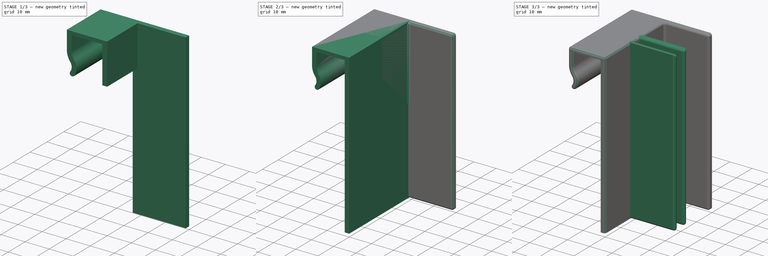
[diagram: build sequence overview — one tinted view per stage of 3, left to right]
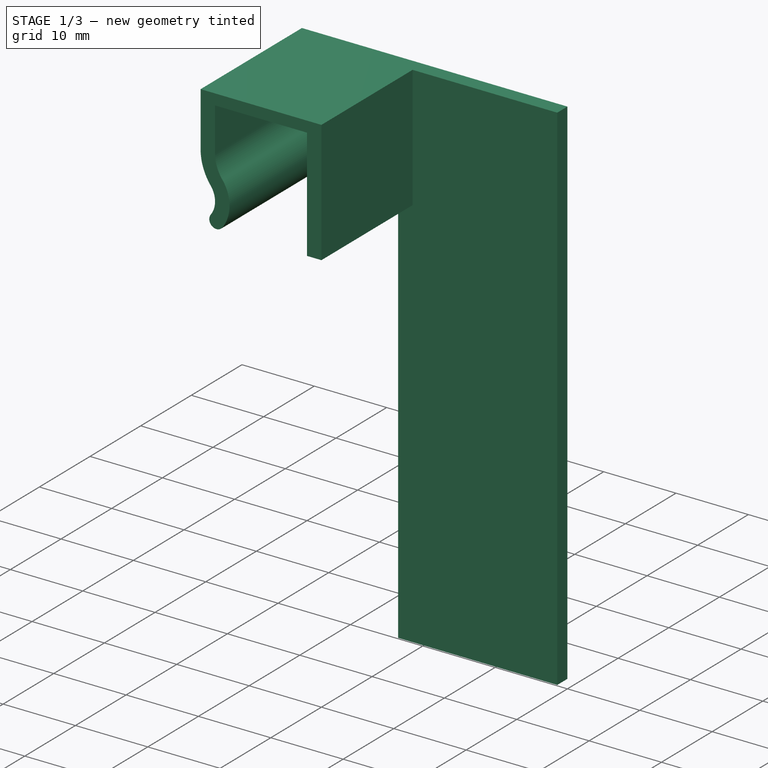
[diagram: stage 1 of 3 — iso view after this stage's code; geometry added in this stage tinted green]
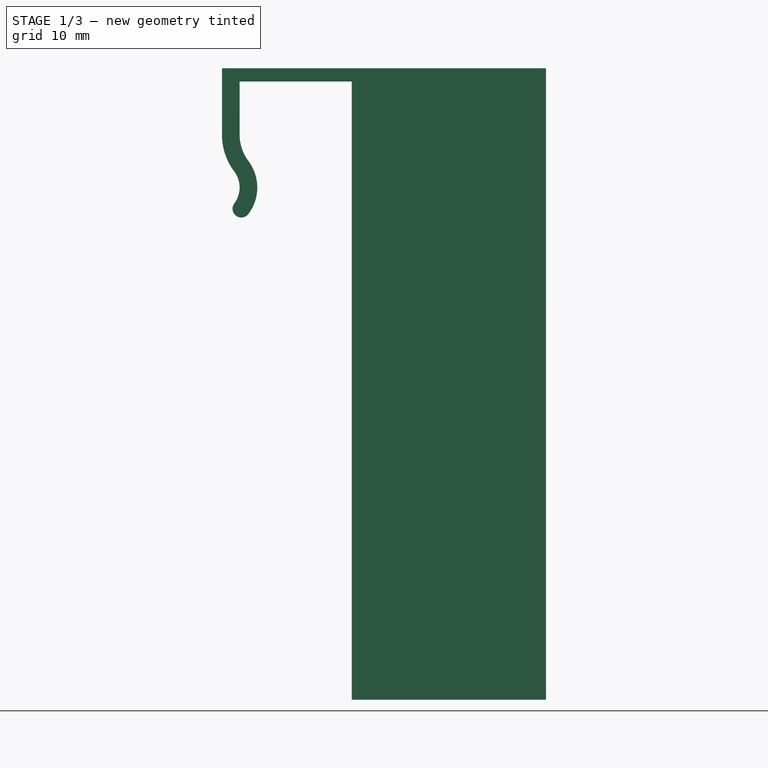
[diagram: stage 1 of 3 — front view after this stage's code; geometry added in this stage tinted green]
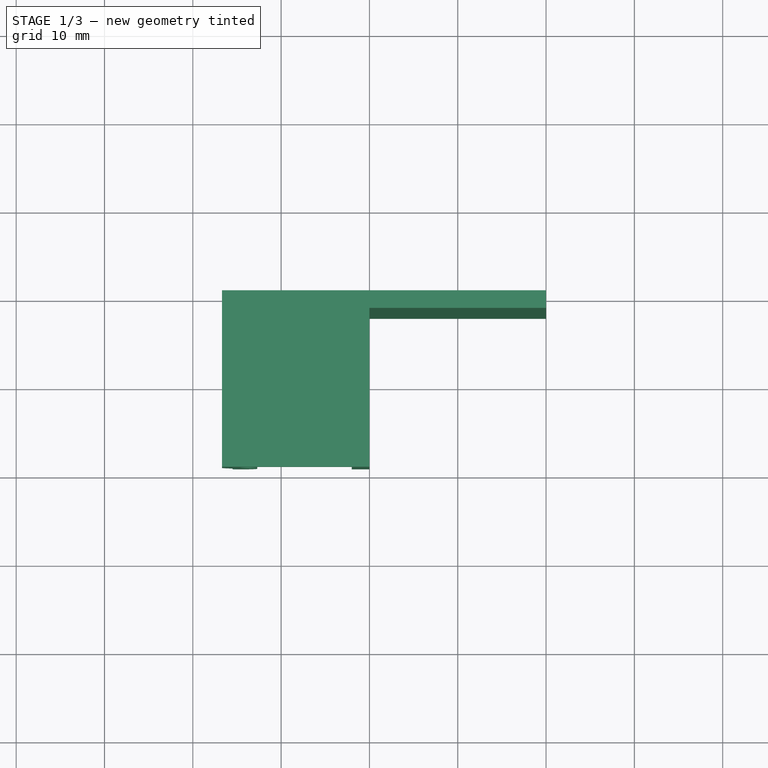
[diagram: stage 1 of 3 — top view after this stage's code; geometry added in this stage tinted green]
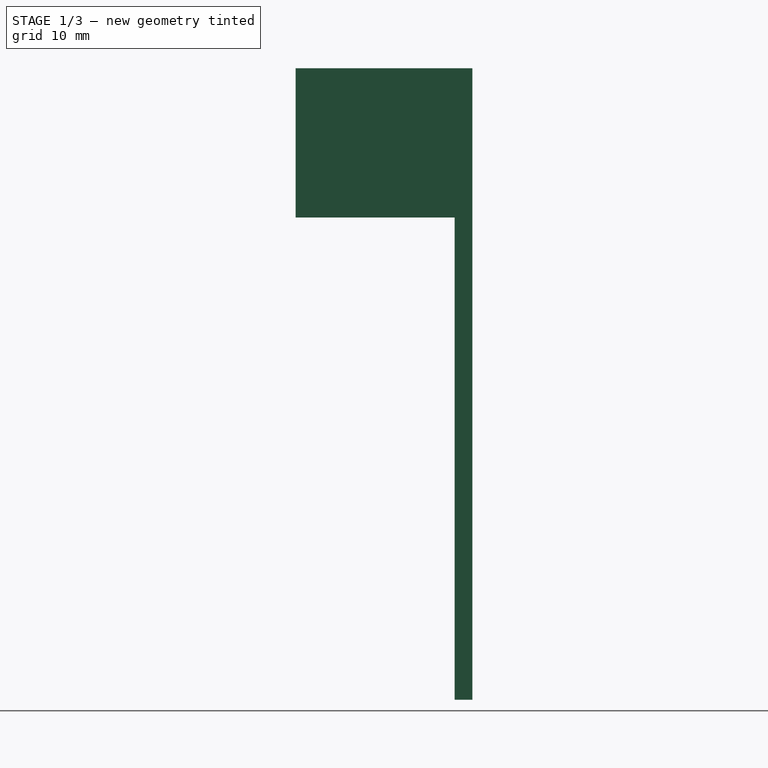
[diagram: stage 1 of 3 — right view after this stage's code; geometry added in this stage tinted green]
FCSTD DOCUMENT  (FreeCAD 0.18.4R)
Label: DrawerSplitter2
License: All rights reserved
LicenseURL: http://en.wikipedia.org/wiki/All_rights_reserved
objects: Sketcher::SketchObject×5, PartDesign::Pad×5, PartDesign::Fillet×2, PartDesign::Body×2
note: 19 computed .brp shape members not serialized (recipe doc carries the construction recipe); baked Part::Feature solids carry a one-line shape summary decoded from their .brp

FEATURE [PartDesign::Body] Body
  Group = -> [Sketch,Pad,Sketch001,Pad001,Fillet]
  Origin = -> Origin
  Tip = -> Fillet
FEATURE [Sketcher::SketchObject] Sketch002
  MapMode = 5
  Placement = pos=(0,0,0) rot=(1,0,0;1.5708rad)
  Support = -> [XZ_Plane001]
  sketch-geometry (20):
    g0: LineSegment StartX=-16.7 StartY=0 StartZ=0 EndX=0 EndY=0 EndZ=0
    g1: LineSegment StartX=0 StartY=0 StartZ=0 EndX=0 EndY=-16.9 EndZ=0
    g2: LineSegment StartX=0 StartY=-16.9 StartZ=0 EndX=-2 EndY=-16.9 EndZ=0
    g3: LineSegment StartX=-2 StartY=-16.9 StartZ=0 EndX=-2 EndY=-1.5 EndZ=0
    g4: LineSegment StartX=-14.7 StartY=-1.5 StartZ=0 EndX=-2 EndY=-1.5 EndZ=0
    g5: LineSegment StartX=-16.7 StartY=0 StartZ=0 EndX=-16.7 EndY=-7.5 EndZ=0
    g6: LineSegment StartX=-14.7 StartY=-7.5 StartZ=0 EndX=-14.7 EndY=-1.5 EndZ=0
    g7: LineSegment [constr] StartX=-14.7 StartY=-1.5 StartZ=0 EndX=-16.7 EndY=-1.5 EndZ=0
    g8: ArcOfCircle CenterX=-9.7 CenterY=-7.5 CenterZ=0 NormalX=0 NormalY=0 NormalZ=1 AngleXU=0 Radius=5 StartAngle=3.14159 EndAngle=3.78509
    g9: ArcOfCircle CenterX=-17.7 CenterY=-13.5 CenterZ=0 NormalX=0 NormalY=0 NormalZ=1 AngleXU=0 Radius=5 StartAngle=5.63968 EndAngle=6.92669
    g10: ArcOfCircle CenterX=-9.7 CenterY=-7.5 CenterZ=0 NormalX=0 NormalY=0 NormalZ=1 AngleXU=0 Radius=7 StartAngle=3.14159 EndAngle=3.78509
    g11: ArcOfCircle CenterX=-17.7 CenterY=-13.5 CenterZ=0 NormalX=0 NormalY=0 NormalZ=1 AngleXU=0 Radius=3 StartAngle=5.63968 EndAngle=6.92669
    g12: LineSegment [constr] StartX=-15.3 StartY=-15.3 StartZ=0 EndX=-13.7 EndY=-16.5 EndZ=0
    g13: ArcOfCircle CenterX=-14.5 CenterY=-15.9 CenterZ=0 NormalX=0 NormalY=0 NormalZ=1 AngleXU=0 Radius=1 StartAngle=2.49809 EndAngle=5.63968
    g14: LineSegment [constr] StartX=-12.7 StartY=-1.5 StartZ=0 EndX=-12.7 EndY=-13.5 EndZ=0
    g15: LineSegment [constr] StartX=-17.7 StartY=-13.5 StartZ=0 EndX=-12.7 EndY=-13.5 EndZ=0
    g16: LineSegment [constr] StartX=-2 StartY=-16.9 StartZ=0 EndX=-14.5 EndY=-16.9 EndZ=0
    g17: LineSegment [constr] StartX=-2 StartY=-16.9 StartZ=0 EndX=-2 EndY=-71.5 EndZ=0
    g18: LineSegment [constr] StartX=-2 StartY=-71.5 StartZ=0 EndX=0 EndY=-71.5 EndZ=0
    g19: LineSegment [constr] StartX=0 StartY=-71.5 StartZ=0 EndX=0 EndY=-16.9 EndZ=0
  constraints (55):
    c: Coincident(g0,g1)
    c: Coincident(g1,g2)
    c: Coincident(g2,g3)
    c: Horizontal(g0)
    c: Horizontal(g2)
    c: Vertical(g1)
    c: Vertical(g3)
    c: Coincident(g6,g4)
    c: Horizontal(g4)
    c: Vertical(g5)
    c: Vertical(g6)
    c: Coincident(g4,g3)
    c: Coincident(g5,g0)
    c: DistanceX(g2,g2) = 2  'Thickness'
    c: DistanceX(g4,g4) = 12.7
    c: Coincident(g7,g4)
    c: PointOnObject(g7,g5)
    c: Horizontal(g7)
    c: Equal(g7,g2)
    c: DistanceY(g3,g0) = 1.5
    c: Tangent(g6,g8) = 1.5708
    c: Tangent(g8,g9) = 1.5708
    c: DistanceY(g6,g6) = 6
    c: Coincident(g10,g8)
    c: Coincident(g12,g11)
    c: Coincident(g9,g12)
    c: PointOnObject(g9,g12)
    c: PointOnObject(g13,g12)
    c: Coincident(g13,g11)
    c: Coincident(g13,g9)
    c: PointOnObject(g14,g4)
    c: Vertical(g14)
    c: Tangent(g14,g9) = 1.5708
    c: Tangent(g10,g11) = 1.5708
    c: Coincident(g9,g11)
    c: DistanceX(g4,g14) = 2
    c: Coincident(g15,g9)
    c: Coincident(g15,g14)
    c: Symmetric(g10,g11,g15)
    c: Tangent(g5,g10) = -1.5708
    c: DistanceY(g14,g6) = 6
    c: Radius(g9) = 5
    c: Coincident(g16,g2)
    c: Horizontal(g16)
    c: Tangent(g16,g13) = 1.5708
    c: Coincident(g2,g17)
    c: Vertical(g17)
    c: Coincident(g17,g18)
    c: Horizontal(g18)
    c: Coincident(g18,g19)
    c: Coincident(g19,g1)
    c: Vertical(g19)
    c: DistanceY(g17,g3) = 70
    c: DistanceY(g18,g0) = 71.5  'Height'
    c: Coincident(g0,g-1)  '__ANCHOR__'
FEATURE [PartDesign::Pad] Pad002
  Length = 20
  Length2 = 100
  Placement = pos=(0,0,0) rot=(1,0,0;1.5708rad)
  Profile = -> Sketch002
  Type = 0
FEATURE [Sketcher::SketchObject] Sketch003
  ExternalGeometry = -> [Sketch002]
  MapMode = 5
  Support = -> [XY_Plane001]
  expr: Constraints.Thickness = Sketch002.Constraints.Thickness
  sketch-geometry (4):
    g0: LineSegment StartX=-2 StartY=-2 StartZ=0 EndX=20 EndY=-2 EndZ=0
    g1: LineSegment StartX=20 StartY=-2 StartZ=0 EndX=20 EndY=-2e-15 EndZ=0
    g2: LineSegment StartX=20 StartY=-2e-15 StartZ=0 EndX=-2 EndY=-2e-15 EndZ=0
    g3: LineSegment StartX=-2 StartY=-2e-15 StartZ=0 EndX=-2 EndY=-2 EndZ=0
  constraints (11):
    c: Coincident(g0,g1)
    c: Coincident(g1,g2)
    c: Coincident(g2,g3)
    c: Coincident(g3,g0)
    c: Horizontal(g0)
    c: Horizontal(g2)
    c: Vertical(g1)
    c: Vertical(g3)
    c: DistanceY(g1,g1) = 2  'Thickness'
    c: Coincident(g2,g-3)
    c: DistanceX(g-4,g1) = 20
FEATURE [PartDesign::Pad] Pad003
  BaseFeature = -> Pad002
  Length = 71.5
  Length2 = 100
  Placement = pos=(0,0,0) rot=(1,0,0;1.5708rad)
  Profile = -> Sketch003
  Reversed = true
  Type = 0
  expr: Length = Sketch002.Constraints.Height
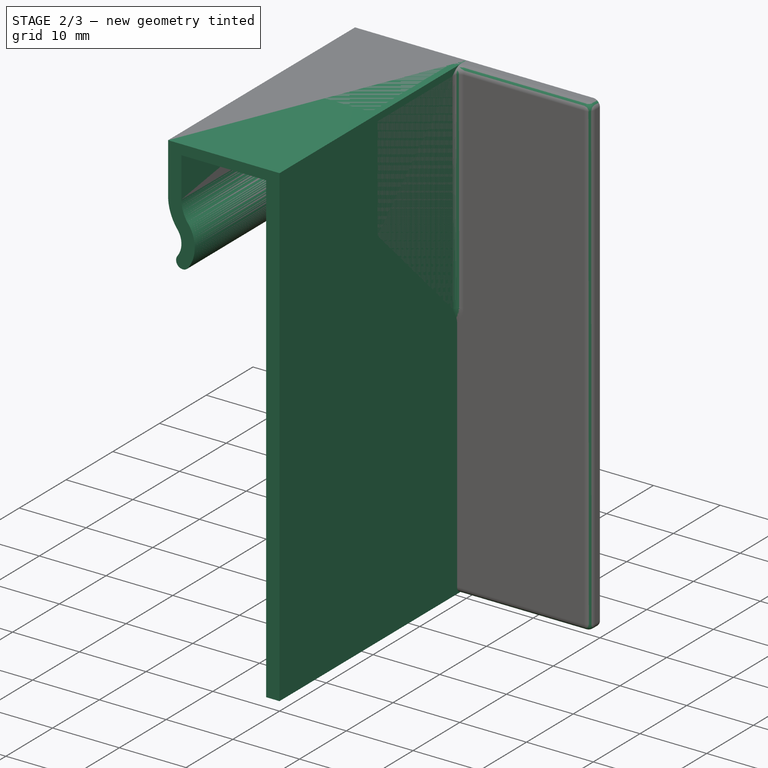
[diagram: stage 2 of 3 — iso view after this stage's code; geometry added in this stage tinted green]
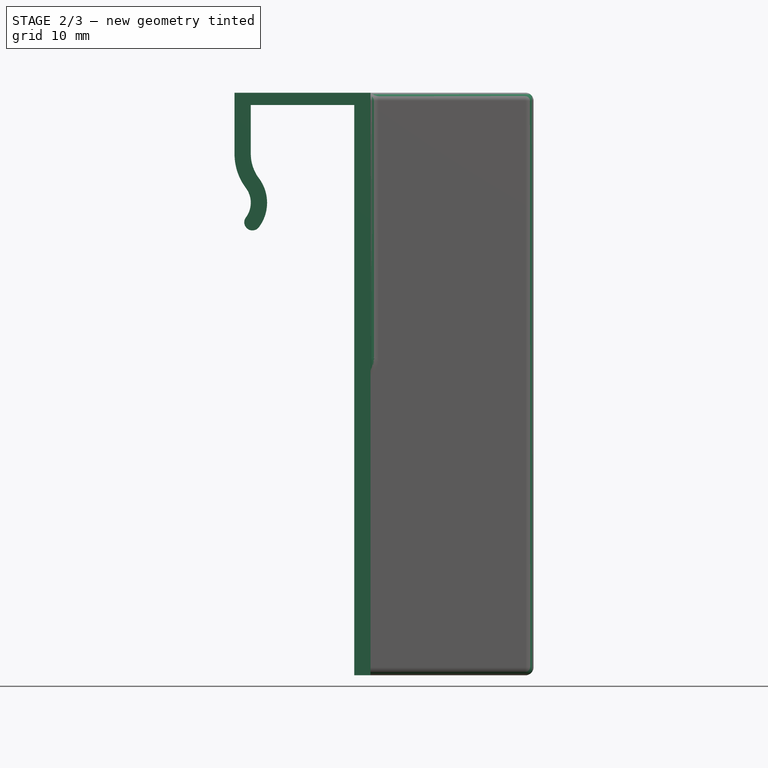
[diagram: stage 2 of 3 — front view after this stage's code; geometry added in this stage tinted green]
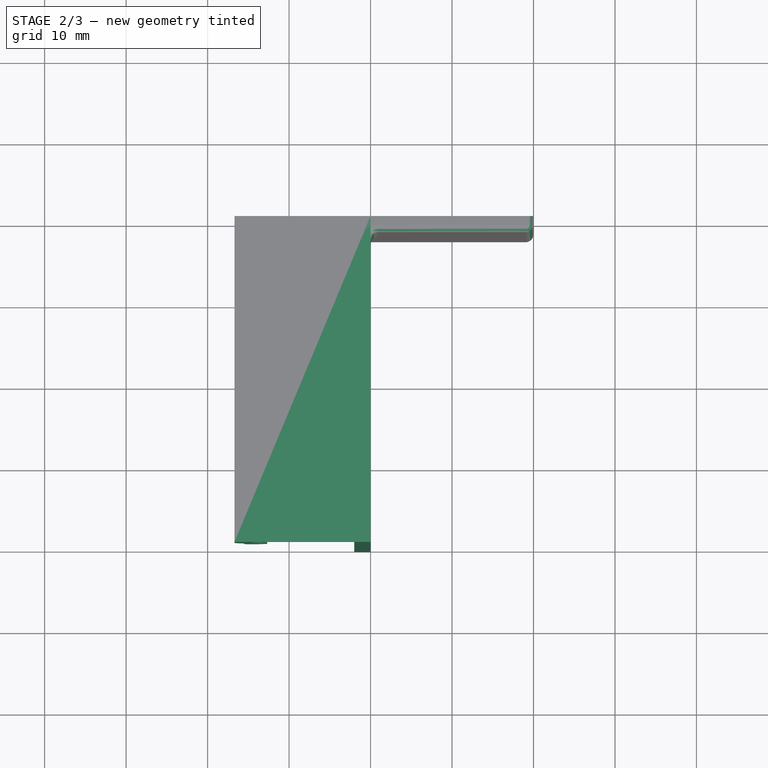
[diagram: stage 2 of 3 — top view after this stage's code; geometry added in this stage tinted green]
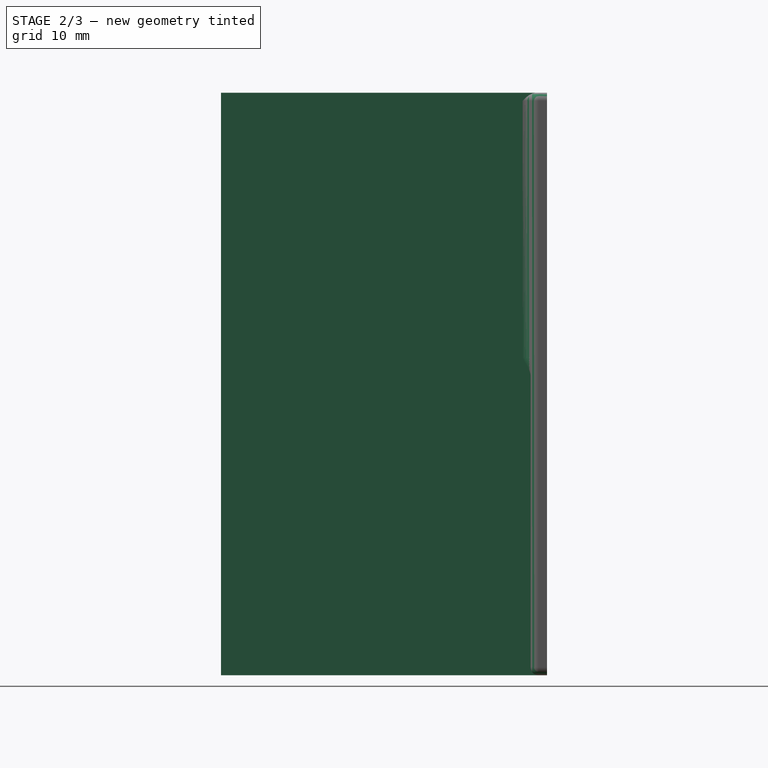
[diagram: stage 2 of 3 — right view after this stage's code; geometry added in this stage tinted green]
FEATURE [Sketcher::SketchObject] Sketch
  MapMode = 5
  Placement = pos=(0,0,0) rot=(1,0,0;1.5708rad)
  Support = -> [XZ_Plane]
  sketch-geometry (16):
    g0: LineSegment StartX=-16.7 StartY=0 StartZ=0 EndX=0 EndY=0 EndZ=0
    g1: LineSegment StartX=0 StartY=0 StartZ=0 EndX=0 EndY=-71.5 EndZ=0
    g2: LineSegment StartX=0 StartY=-71.5 StartZ=0 EndX=-2 EndY=-71.5 EndZ=0
    g3: LineSegment StartX=-2 StartY=-71.5 StartZ=0 EndX=-2 EndY=-1.5 EndZ=0
    g4: LineSegment StartX=-14.7 StartY=-1.5 StartZ=0 EndX=-2 EndY=-1.5 EndZ=0
    g5: LineSegment StartX=-16.7 StartY=0 StartZ=0 EndX=-16.7 EndY=-7.5 EndZ=0
    g6: LineSegment StartX=-14.7 StartY=-7.5 StartZ=0 EndX=-14.7 EndY=-1.5 EndZ=0
    g7: LineSegment [constr] StartX=-14.7 StartY=-1.5 StartZ=0 EndX=-16.7 EndY=-1.5 EndZ=0
    g8: ArcOfCircle CenterX=-9.7 CenterY=-7.5 CenterZ=0 NormalX=0 NormalY=0 NormalZ=1 AngleXU=0 Radius=5 StartAngle=3.14159 EndAngle=3.78509
    g9: ArcOfCircle CenterX=-17.7 CenterY=-13.5 CenterZ=0 NormalX=0 NormalY=0 NormalZ=1 AngleXU=0 Radius=5 StartAngle=5.63968 EndAngle=6.92669
    g10: ArcOfCircle CenterX=-9.7 CenterY=-7.5 CenterZ=0 NormalX=0 NormalY=0 NormalZ=1 AngleXU=0 Radius=7 StartAngle=3.14159 EndAngle=3.78509
    g11: ArcOfCircle CenterX=-17.7 CenterY=-13.5 CenterZ=0 NormalX=0 NormalY=0 NormalZ=1 AngleXU=0 Radius=3 StartAngle=5.63968 EndAngle=6.92669
    g12: LineSegment [constr] StartX=-15.3 StartY=-15.3 StartZ=0 EndX=-13.7 EndY=-16.5 EndZ=0
    g13: ArcOfCircle CenterX=-14.5 CenterY=-15.9 CenterZ=0 NormalX=0 NormalY=0 NormalZ=1 AngleXU=0 Radius=1 StartAngle=2.49809 EndAngle=5.63968
    g14: LineSegment [constr] StartX=-12.7 StartY=-1.5 StartZ=0 EndX=-12.7 EndY=-13.5 EndZ=0
    g15: LineSegment [constr] StartX=-17.7 StartY=-13.5 StartZ=0 EndX=-12.7 EndY=-13.5 EndZ=0
  constraints (45):
    c: Coincident(g0,g1)
    c: Coincident(g1,g2)
    c: Coincident(g2,g3)
    c: Horizontal(g0)
    c: Horizontal(g2)
    c: Vertical(g1)
    c: Vertical(g3)
    c: Coincident(g6,g4)
    c: Horizontal(g4)
    c: Vertical(g5)
    c: Vertical(g6)
    c: Coincident(g4,g3)
    c: Coincident(g5,g0)
    c: DistanceX(g2,g2) = 2
    c: DistanceX(g4,g4) = 12.7
    c: Coincident(g7,g4)
    c: PointOnObject(g7,g5)
    c: Horizontal(g7)
    c: Equal(g7,g2)
    c: DistanceY(g3,g0) = 1.5
    c: Tangent(g6,g8) = 1.5708
    c: Tangent(g8,g9) = 1.5708
    c: DistanceY(g6,g6) = 6
    c: Coincident(g10,g8)
    c: Coincident(g12,g11)
    c: Coincident(g9,g12)
    c: PointOnObject(g9,g12)
    c: PointOnObject(g13,g12)
    c: Coincident(g13,g11)
    c: Coincident(g13,g9)
    c: PointOnObject(g14,g4)
    c: Vertical(g14)
    c: Tangent(g14,g9) = 1.5708
    c: Tangent(g10,g11) = 1.5708
    c: Coincident(g9,g11)
    c: DistanceX(g4,g14) = 2
    c: DistanceY(g3,g3) = 70
    c: Coincident(g15,g9)
    c: Coincident(g15,g14)
    c: Symmetric(g10,g11,g15)
    c: Tangent(g5,g10) = -1.5708
    c: DistanceY(g14,g6) = 6
    c: Radius(g9) = 5
    c: Coincident(g0,g-1)  '__ANCHOR__'
    c: DistanceY(g1,g0) = 71.5  'Height'
FEATURE [PartDesign::Pad] Pad
  Length = 40
  Length2 = 100
  Placement = pos=(0,0,0) rot=(1,0,0;1.5708rad)
  Profile = -> Sketch
  Type = 0
FEATURE [Sketcher::SketchObject] Sketch004
  ExternalGeometry = -> [Sketch003,Sketch002]
  MapMode = 5
  Placement = pos=(0,0,0) rot=(0.57735,0.57735,0.57735;2.0944rad)
  Support = -> [YZ_Plane001]
  expr: Constraints[2] = Pad002.Length
  sketch-geometry (7):
    g0: LineSegment [constr] StartX=-2 StartY=0 StartZ=0 EndX=-20 EndY=0 EndZ=0
    g1: LineSegment [constr] StartX=-20 StartY=0 StartZ=0 EndX=-20 EndY=-16.9 EndZ=0
    g2: LineSegment StartX=-20 StartY=-16.9 StartZ=0 EndX=-2 EndY=-16.9 EndZ=0
    g3: LineSegment [constr] StartX=-2 StartY=-16.9 StartZ=0 EndX=0 EndY=-16.9 EndZ=0
    g4: LineSegment [constr] StartX=-2 StartY=0 StartZ=0 EndX=-2 EndY=-16.9 EndZ=0
    g5: LineSegment StartX=-2 StartY=-16.9 StartZ=0 EndX=-2 EndY=-34.9 EndZ=0
    g6: LineSegment StartX=-2 StartY=-34.9 StartZ=0 EndX=-20 EndY=-16.9 EndZ=0
  constraints (18):
    c: Horizontal(g0)
    c: Coincident(g0,g-3)
    c: DistanceX(g0,g-4) = 20
    c: Coincident(g1,g0)
    c: Vertical(g1)
    c: Coincident(g2,g1)
    c: Horizontal(g2)
    c: Coincident(g3,g2)
    c: Coincident(g3,g-4)
    c: Horizontal(g3)
    c: Coincident(g4,g0)
    c: Coincident(g4,g2)
    c: Vertical(g4)
    c: Coincident(g2,g5)
    c: Vertical(g5)
    c: Coincident(g5,g6)
    c: Coincident(g6,g2)
    c: Equal(g2,g5)
FEATURE [PartDesign::Pad] Pad004
  BaseFeature = -> Pad003
  Length = 2
  Length2 = 100
  Placement = pos=(0,0,0) rot=(1,0,0;1.5708rad)
  Profile = -> Sketch004
  Refine = true
  Reversed = true
  Type = 0
  expr: Length = Sketch002.Constraints.Thickness
FEATURE [PartDesign::Fillet] Fillet001
  Base = -> Pad004 [Edge43,Edge6,Edge1,Edge39,Edge2,Edge3,Edge4,Edge5,Edge9,Edge7,Edge12,Edge14,Edge21,Edge10,Edge42,Edge40,Edge11,Edge8]
  BaseFeature = -> Pad004
  Placement = pos=(0,0,0) rot=(1,0,0;1.5708rad)
  Radius = 0.99
FEATURE [PartDesign::Body] Body001
  Group = -> [Sketch002,Pad002,Sketch003,Pad003,Sketch004,Pad004,Fillet001]
  Origin = -> Origin001
  Tip = -> Fillet001
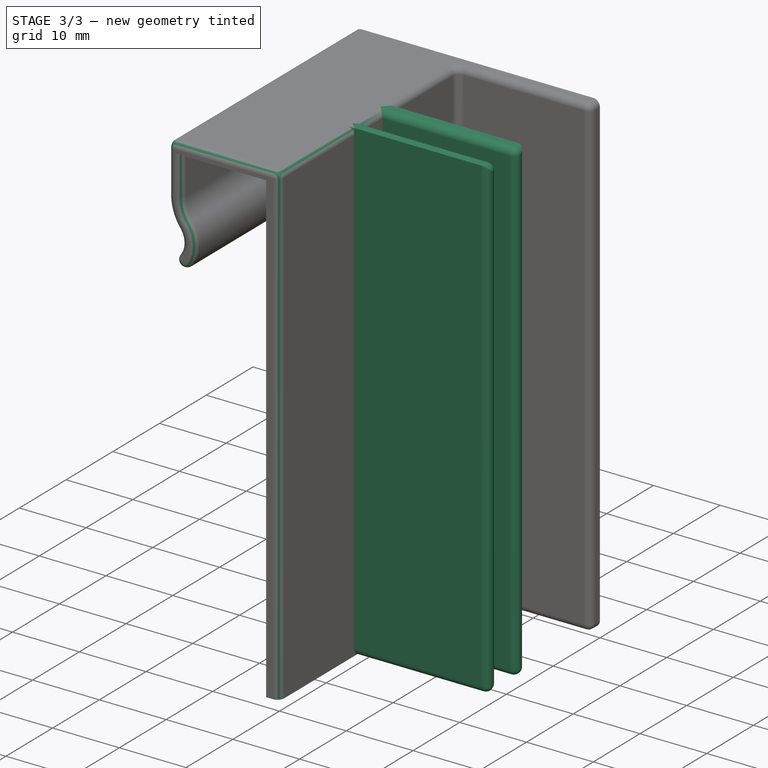
[diagram: stage 3 of 3 — iso view after this stage's code; geometry added in this stage tinted green]
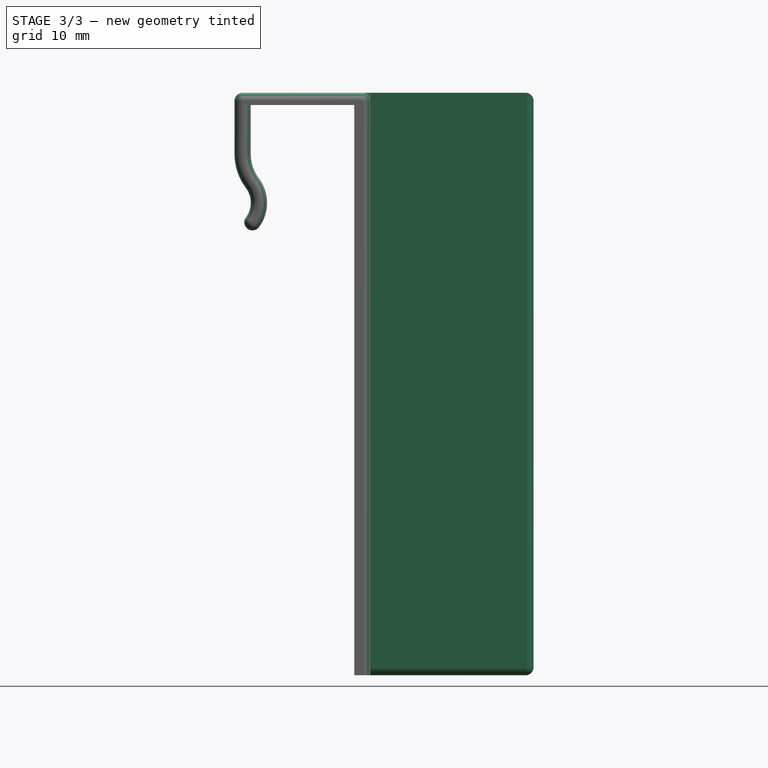
[diagram: stage 3 of 3 — front view after this stage's code; geometry added in this stage tinted green]
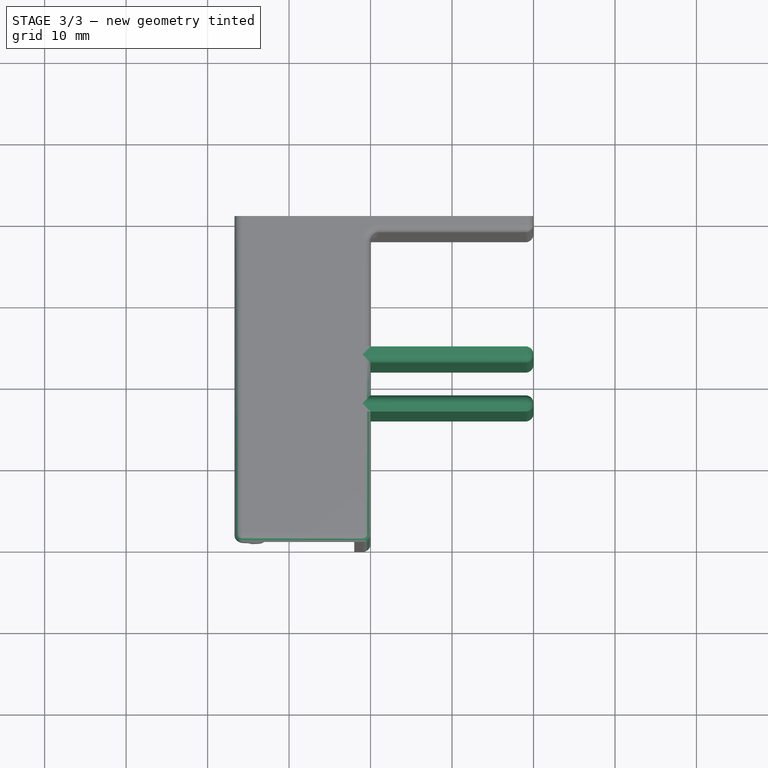
[diagram: stage 3 of 3 — top view after this stage's code; geometry added in this stage tinted green]
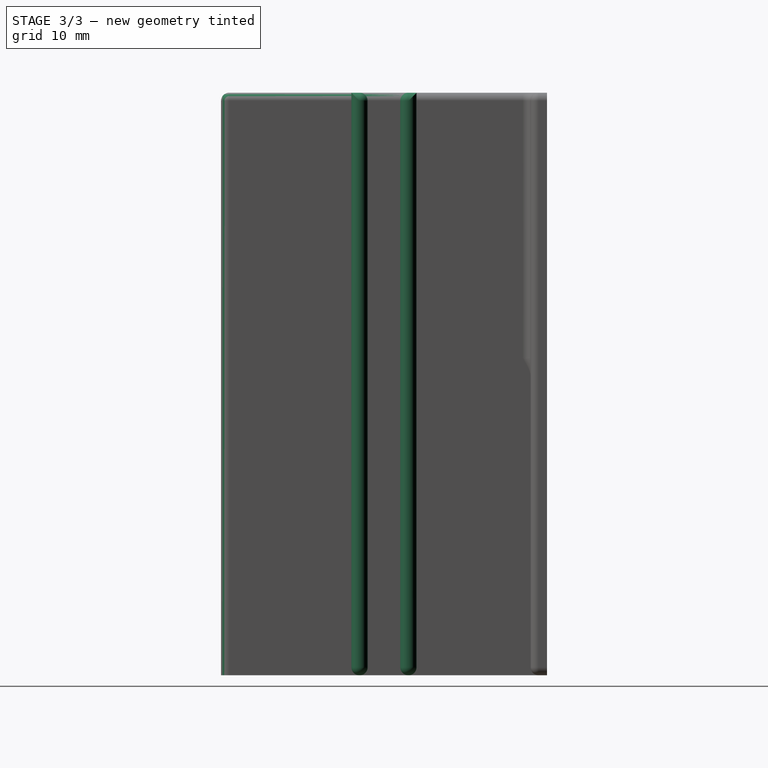
[diagram: stage 3 of 3 — right view after this stage's code; geometry added in this stage tinted green]
FEATURE [Sketcher::SketchObject] Sketch001
  MapMode = 5
  Support = -> [XY_Plane]
  expr: Constraints[23] = Pad.Length / 2
  sketch-geometry (9):
    g0: LineSegment StartX=0 StartY=-16 StartZ=0 EndX=20 EndY=-16 EndZ=0
    g1: LineSegment StartX=20 StartY=-16 StartZ=0 EndX=20 EndY=-18 EndZ=0
    g2: LineSegment StartX=20 StartY=-18 StartZ=0 EndX=0 EndY=-18 EndZ=0
    g3: LineSegment StartX=0 StartY=-18 StartZ=0 EndX=0 EndY=-16 EndZ=0
    g4: LineSegment StartX=0 StartY=-22 StartZ=0 EndX=20 EndY=-22 EndZ=0
    g5: LineSegment StartX=20 StartY=-22 StartZ=0 EndX=20 EndY=-24 EndZ=0
    g6: LineSegment StartX=20 StartY=-24 StartZ=0 EndX=0 EndY=-24 EndZ=0
    g7: LineSegment StartX=0 StartY=-24 StartZ=0 EndX=0 EndY=-22 EndZ=0
    g8: GeomPoint X=0 Y=-20 Z=0
  constraints (25):
    c: Coincident(g0,g1)
    c: Coincident(g1,g2)
    c: Coincident(g2,g3)
    c: Coincident(g3,g0)
    c: Horizontal(g0)
    c: Horizontal(g2)
    c: Vertical(g1)
    c: Vertical(g3)
    c: PointOnObject(g0,g-2)
    c: Coincident(g4,g5)
    c: Coincident(g5,g6)
    c: Coincident(g6,g7)
    c: Coincident(g7,g4)
    c: Horizontal(g4)
    c: Horizontal(g6)
    c: Vertical(g5)
    c: Vertical(g7)
    c: PointOnObject(g4,g-2)
    c: Equal(g5,g1)
    c: Equal(g2,g4)
    c: DistanceY(g4,g1) = 4
    c: DistanceY(g1,g1) = 2
    c: Symmetric(g4,g2,g8)
    c: DistanceY(g8,g-1) = 20
    c: DistanceX(g0,g0) = 20
FEATURE [PartDesign::Pad] Pad001
  BaseFeature = -> Pad
  Length = 71.5
  Length2 = 100
  Placement = pos=(0,0,0) rot=(1,0,0;1.5708rad)
  Profile = -> Sketch001
  Refine = true
  Reversed = true
  Type = 0
  expr: Length = Sketch.Constraints.Height
FEATURE [PartDesign::Fillet] Fillet
  Base = -> Pad001 [Edge4,Edge45,Edge19,Edge41,Edge47,Edge20,Edge31,Edge5,Edge53,Edge48,Edge42,Edge36,Face12,Face8,Edge3,Edge16,Edge30,Edge15]
  BaseFeature = -> Pad001
  Placement = pos=(0,0,0) rot=(1,0,0;1.5708rad)
  Radius = 0.99
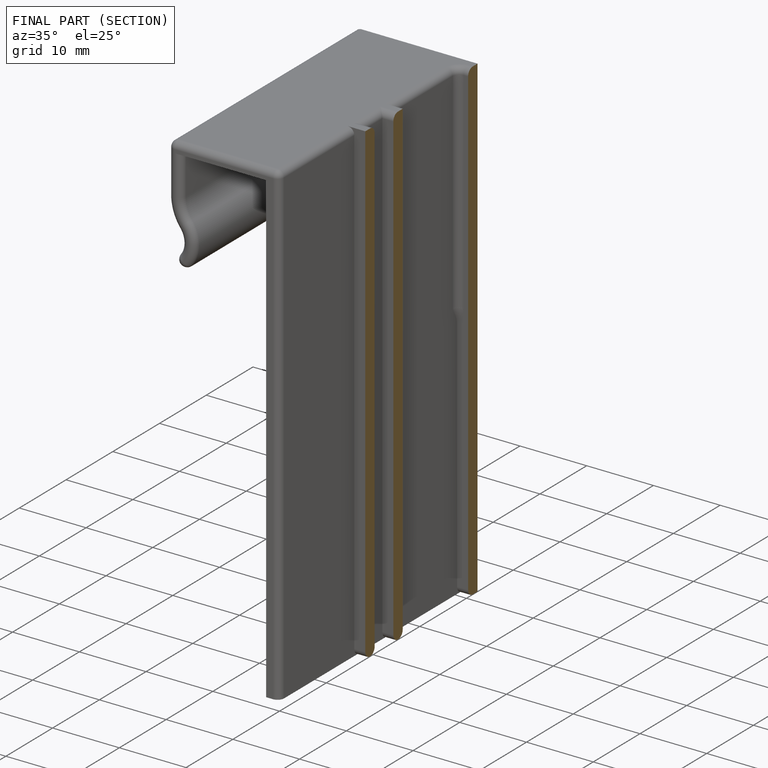
[diagram: finished part — half-section view (interior)]
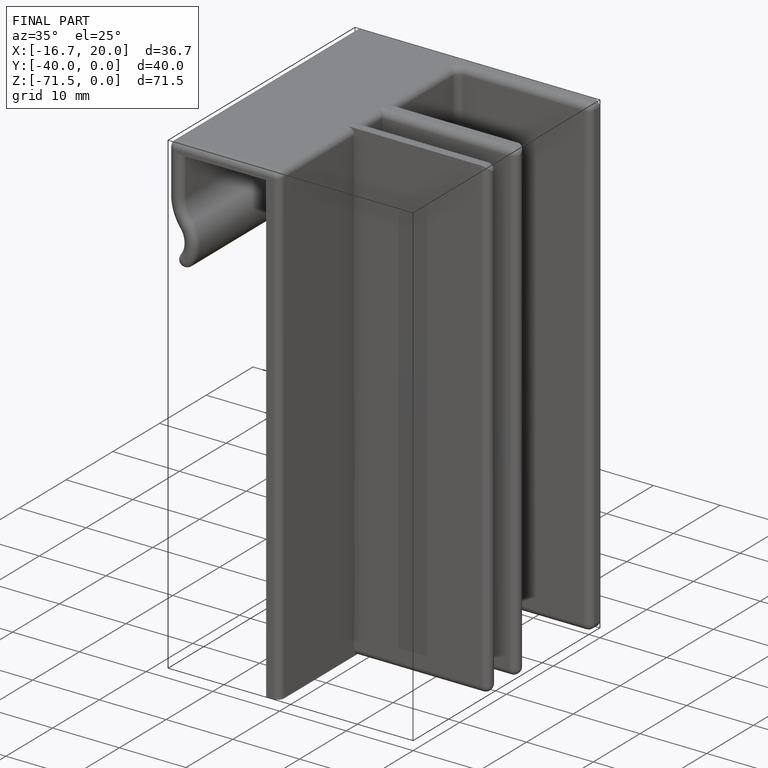
[diagram: finished part — iso view with bounding-box wireframe]
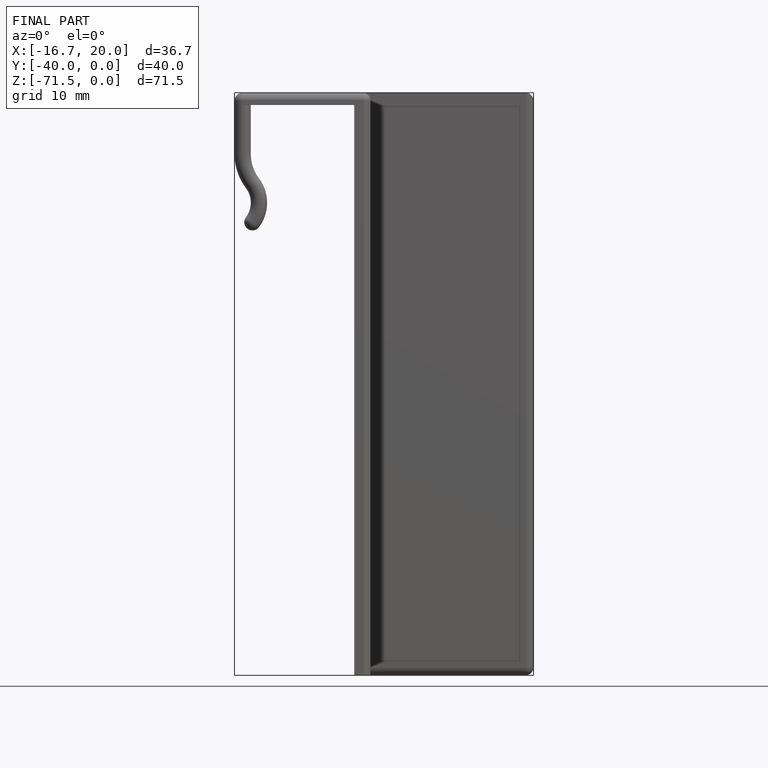
[diagram: finished part — front view with bounding-box wireframe]
